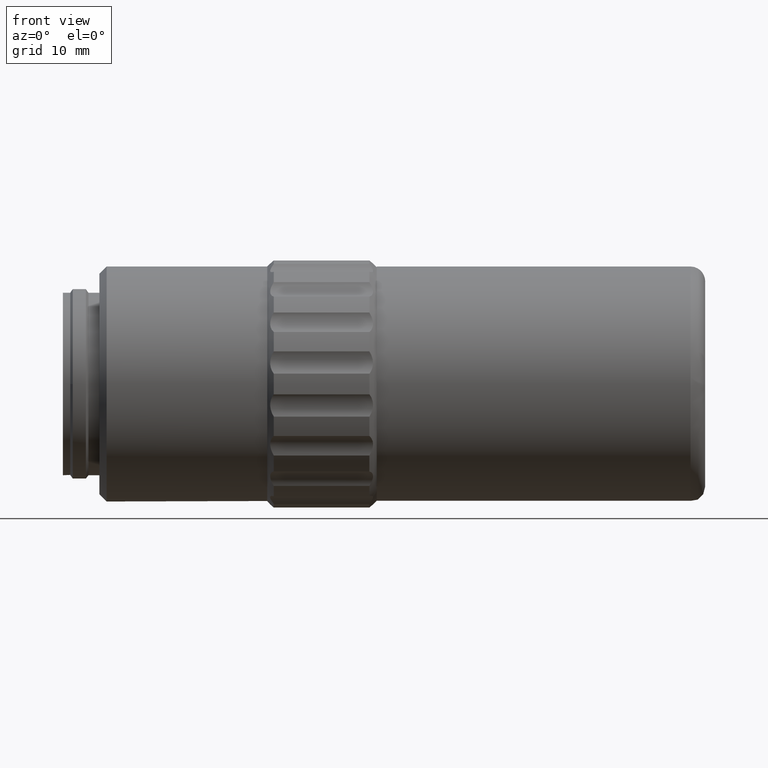
[diagram: clean part render]
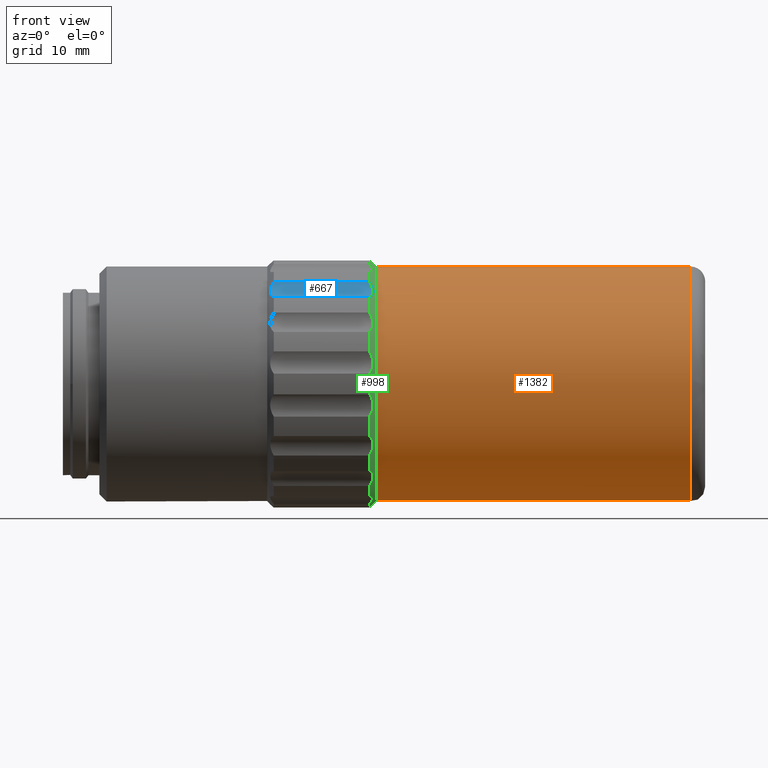
[diagram: same view with three faces highlighted in distinct colors, each labeled with its STEP entity id]
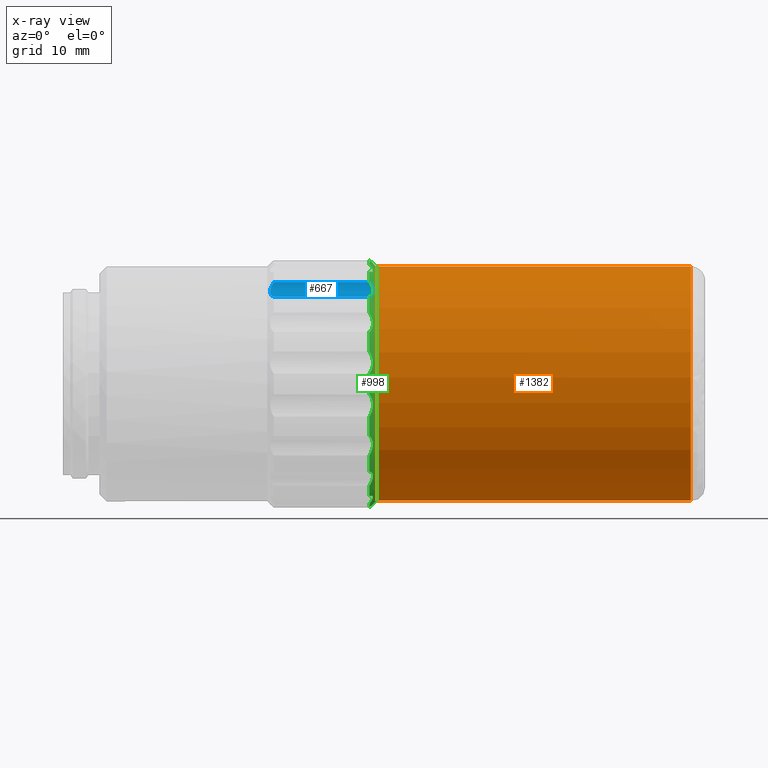
[diagram: x-ray of the same camera — body ghosted, the three highlighted faces saturated]
A machine part, front view with three faces highlighted in distinct colors.
The next image is the same camera in x-ray (body ghosted, the three faces saturated) — at least one of them is partly hidden behind the body in this view.
Their STEP definitions:

[orange] entity #1382 — the highlighted cylindrical surface (bore or boss wall) has radius 16.1 mm, axis along (-1, 0, 0).
#197 = EDGE_LOOP ( 'NONE', ( #1366 ) ) ;
#219 = CYLINDRICAL_SURFACE ( 'NONE', #1283, 16.10000000000000142 ) ;
#323 = EDGE_LOOP ( 'NONE', ( #825 ) ) ;
#419 = CARTESIAN_POINT ( 'NONE',  ( 61.03703999999999752, 46.02096199999999726, 0.000000000000000000 ) ) ;
#567 = CARTESIAN_POINT ( 'NONE',  ( 50.33704000000000178, 46.02096199999999726, 16.10000000000000142 ) ) ;
#581 = CARTESIAN_POINT ( 'NONE',  ( 50.33704000000000178, 46.02096199999999726, 0.000000000000000000 ) ) ;
#673 = FACE_OUTER_BOUND ( 'NONE', #197, .T. ) ;
#746 = DIRECTION ( 'NONE',  ( 1.000000000000000000, -0.000000000000000000, -0.000000000000000000 ) ) ;
#825 = ORIENTED_EDGE ( 'NONE', *, *, #1693, .T. ) ;
#857 = DIRECTION ( 'NONE',  ( -1.000000000000000000, 0.000000000000000000, 0.000000000000000000 ) ) ;
#994 = AXIS2_PLACEMENT_3D ( 'NONE', #581, #746, #1415 ) ;
#1018 = CARTESIAN_POINT ( 'NONE',  ( 93.33704000000001599, 46.02096199999999726, 0.000000000000000000 ) ) ;
#1052 = VERTEX_POINT ( 'NONE', #567 ) ;
#1209 = CIRCLE ( 'NONE', #1423, 16.10000000000000142 ) ;
#1283 = AXIS2_PLACEMENT_3D ( 'NONE', #419, #2117, #1583 ) ;
#1366 = ORIENTED_EDGE ( 'NONE', *, *, #1455, .T. ) ;
#1382 = ADVANCED_FACE ( 'NONE', ( #673, #1801 ), #219, .T. ) ;
#1415 = DIRECTION ( 'NONE',  ( 0.000000000000000000, 0.000000000000000000, 1.000000000000000000 ) ) ;
#1423 = AXIS2_PLACEMENT_3D ( 'NONE', #1018, #857, #1541 ) ;
#1455 = EDGE_CURVE ( 'NONE', #1052, #1052, #1537, .T. ) ;
#1537 = CIRCLE ( 'NONE', #994, 16.10000000000000142 ) ;
#1541 = DIRECTION ( 'NONE',  ( 0.000000000000000000, 0.000000000000000000, 1.000000000000000000 ) ) ;
#1582 = VERTEX_POINT ( 'NONE', #1724 ) ;
#1583 = DIRECTION ( 'NONE',  ( 0.000000000000000000, 0.000000000000000000, 1.000000000000000000 ) ) ;
#1693 = EDGE_CURVE ( 'NONE', #1582, #1582, #1209, .T. ) ;
#1724 = CARTESIAN_POINT ( 'NONE',  ( 93.33704000000001599, 46.02096199999999726, 16.10000000000000142 ) ) ;
#1801 = FACE_OUTER_BOUND ( 'NONE', #323, .T. ) ;
#2117 = DIRECTION ( 'NONE',  ( -1.000000000000000000, 0.000000000000000000, 0.000000000000000000 ) ) ;

[blue] entity #667 — the highlighted cylindrical surface (edge-blend (fillet) strip) has radius 3 mm, axis along (-1, 0, 0).
#53 = CYLINDRICAL_SURFACE ( 'NONE', #397, 3.000000000000000888 ) ;
#83 = CARTESIAN_POINT ( 'NONE',  ( 35.79583389907071478, 35.81385022434189835, 13.03947610223928244 ) ) ;
#124 = LINE ( 'NONE', #944, #1648 ) ;
#143 = CARTESIAN_POINT ( 'NONE',  ( 49.74229137359055386, 35.90193111884156707, 13.15323611948972271 ) ) ;
#162 = CARTESIAN_POINT ( 'NONE',  ( 36.23703999999999326, 36.32378364731472686, 13.96297718956139455 ) ) ;
#177 = CARTESIAN_POINT ( 'NONE',  ( 49.48389740914201695, 36.24308934852177089, 13.72813594343331545 ) ) ;
#187 = EDGE_CURVE ( 'NONE', #2011, #2041, #124, .T. ) ;
#205 = CARTESIAN_POINT ( 'NONE',  ( 36.08992233123988314, 36.24294634268020587, 13.72771975950780998 ) ) ;
#233 = EDGE_CURVE ( 'NONE', #2041, #2056, #1794, .T. ) ;
#385 = CARTESIAN_POINT ( 'NONE',  ( 35.73718579602896028, 35.30292207748090760, 12.54587797077276079 ) ) ;
#390 = ORIENTED_EDGE ( 'NONE', *, *, #514, .F. ) ;
#394 = CARTESIAN_POINT ( 'NONE',  ( 35.96557154307952686, 34.44935860872440259, 12.08340433005123060 ) ) ;
#397 = AXIS2_PLACEMENT_3D ( 'NONE', #1565, #1420, #1577 ) ;
#405 = CARTESIAN_POINT ( 'NONE',  ( 35.96396204701623134, 36.12848957674106742, 13.49056406336132596 ) ) ;
#514 = EDGE_CURVE ( 'NONE', #2154, #2011, #1898, .T. ) ;
#544 = FACE_OUTER_BOUND ( 'NONE', #1511, .T. ) ;
#667 = ADVANCED_FACE ( 'NONE', ( #544 ), #53, .F. ) ;
#669 = CARTESIAN_POINT ( 'NONE',  ( 49.82422713112011081, 35.63071352123775881, 12.83490613950239556 ) ) ;
#755 = CARTESIAN_POINT ( 'NONE',  ( 35.74985286887989844, 35.18529463847769989, 12.46115531925904918 ) ) ;
#763 = CARTESIAN_POINT ( 'NONE',  ( 36.09018259085798519, 34.19929705588980795, 12.01319058448290278 ) ) ;
#843 = CARTESIAN_POINT ( 'NONE',  ( 49.77690021752864880, 35.81747045796283402, 13.04400552683793890 ) ) ;
#869 = CARTESIAN_POINT ( 'NONE',  ( 49.60850845692045397, 36.13051957456375618, 13.49406587643664146 ) ) ;
#906 = CARTESIAN_POINT ( 'NONE',  ( 35.83178862640945539, 34.82470436459485086, 12.24933554730702312 ) ) ;
#922 = CARTESIAN_POINT ( 'NONE',  ( 35.79717978247136045, 34.94694193895058731, 12.31354536760547447 ) ) ;
#944 = CARTESIAN_POINT ( 'NONE',  ( 42.83704000000000178, 33.95401115804232006, 11.97450196783886867 ) ) ;
#968 = ORIENTED_EDGE ( 'NONE', *, *, #233, .F. ) ;
#993 = CARTESIAN_POINT ( 'NONE',  ( 36.23704000000000747, 33.95401115804232006, 11.97450196783887932 ) ) ;
#1017 = CARTESIAN_POINT ( 'NONE',  ( 49.83718322546596369, 35.30699293778217651, 12.54897458209229022 ) ) ;
#1034 = EDGE_CURVE ( 'NONE', #2056, #2154, #1772, .T. ) ;
#1040 = CARTESIAN_POINT ( 'NONE',  ( 49.77824610092929447, 34.95203119838304673, 12.31632407541566465 ) ) ;
#1164 = CARTESIAN_POINT ( 'NONE',  ( 49.83689420397103476, 35.52685220674475630, 12.73377765964754893 ) ) ;
#1230 = ORIENTED_EDGE ( 'NONE', *, *, #1034, .F. ) ;
#1260 = CARTESIAN_POINT ( 'NONE',  ( 36.23704000000000747, 33.95401115804232006, 11.97450196783887932 ) ) ;
#1334 = CARTESIAN_POINT ( 'NONE',  ( 49.33703999999998757, 33.95401115804232006, 11.97450196783887932 ) ) ;
#1420 = DIRECTION ( 'NONE',  ( -1.000000000000000000, 0.000000000000000000, 0.000000000000000000 ) ) ;
#1441 = DIRECTION ( 'NONE',  ( 1.000000000000000000, -0.000000000000000000, -0.000000000000000000 ) ) ;
#1509 = VECTOR ( 'NONE', #1441, 1000.000000000000000 ) ;
#1511 = EDGE_LOOP ( 'NONE', ( #968, #1915, #390, #1230 ) ) ;
#1553 = CARTESIAN_POINT ( 'NONE',  ( 49.61011795298376370, 34.45315972681317618, 12.08479540418657017 ) ) ;
#1565 = CARTESIAN_POINT ( 'NONE',  ( 70.47704240000000198, 33.48660361111249983, 14.93786664082010063 ) ) ;
#1577 = DIRECTION ( 'NONE',  ( 0.000000000000000000, 0.000000000000000000, 1.000000000000000000 ) ) ;
#1592 = CARTESIAN_POINT ( 'NONE',  ( 35.73689677453402425, 35.52309574243636803, 12.73030636577399832 ) ) ;
#1648 = VECTOR ( 'NONE', #1836, 1000.000000000000000 ) ;
#1709 = CARTESIAN_POINT ( 'NONE',  ( 49.74291650738140902, 34.82682132065500724, 12.25041840084325528 ) ) ;
#1751 = CARTESIAN_POINT ( 'NONE',  ( 35.83116349261858602, 35.90049711072168037, 13.15133936029216777 ) ) ;
#1772 = LINE ( 'NONE', #1943, #1509 ) ;
#1794 = B_SPLINE_CURVE_WITH_KNOTS ( 'NONE', 3,
 ( #1260, #763, #394, #906, #922, #755, #385, #1592, #1920, #83, #1751, #405, #205, #2091 ),
 .UNSPECIFIED., .F., .F.,
 ( 4, 2, 2, 2, 2, 2, 4 ),
 ( 0.000000000000000000, 0.0008570537395405546446, 0.001285580609310831967, 0.001714107479081109289, 0.002142634348851386612, 0.002571161218621663934, 0.003428214958162211640 ),
 .UNSPECIFIED. ) ;
#1836 = DIRECTION ( 'NONE',  ( -1.000000000000000000, 0.000000000000000000, 0.000000000000000000 ) ) ;
#1893 = CARTESIAN_POINT ( 'NONE',  ( 49.33704000000000178, 36.32378364731472686, 13.96297718956139100 ) ) ;
#1898 = B_SPLINE_CURVE_WITH_KNOTS ( 'NONE', 3,
 ( #1893, #177, #869, #143, #843, #669, #1164, #1017, #2223, #1040, #1709, #1553, #2064, #1334 ),
 .UNSPECIFIED., .F., .F.,
 ( 4, 2, 2, 2, 2, 2, 4 ),
 ( 1.734723475976807094E-18, 0.0008570537395405512836, 0.001285580609310826112, 0.001714107479081100832, 0.002142634348851375336, 0.002571161218621650490, 0.003428214958162204701 ),
 .UNSPECIFIED. ) ;
#1915 = ORIENTED_EDGE ( 'NONE', *, *, #187, .F. ) ;
#1920 = CARTESIAN_POINT ( 'NONE',  ( 35.74888686446901431, 35.62512614287680179, 12.82915025000380105 ) ) ;
#1943 = CARTESIAN_POINT ( 'NONE',  ( 70.47704240000000198, 36.32378364731472686, 13.96297718956139100 ) ) ;
#2011 = VERTEX_POINT ( 'NONE', #2201 ) ;
#2041 = VERTEX_POINT ( 'NONE', #993 ) ;
#2056 = VERTEX_POINT ( 'NONE', #162 ) ;
#2064 = CARTESIAN_POINT ( 'NONE',  ( 49.48415766876007638, 34.19973174975011432, 12.01325914816416329 ) ) ;
#2091 = CARTESIAN_POINT ( 'NONE',  ( 36.23703999999999326, 36.32378364731472686, 13.96297718956139455 ) ) ;
#2154 = VERTEX_POINT ( 'NONE', #2210 ) ;
#2201 = CARTESIAN_POINT ( 'NONE',  ( 49.33703999999998757, 33.95401115804232006, 11.97450196783887932 ) ) ;
#2210 = CARTESIAN_POINT ( 'NONE',  ( 49.33704000000000178, 36.32378364731472686, 13.96297718956139100 ) ) ;
#2223 = CARTESIAN_POINT ( 'NONE',  ( 49.82519313553098073, 35.19193332115171557, 12.46565831306566352 ) ) ;

[green] entity #998 — the highlighted conical surface has half-angle 45 deg.
#2 = CARTESIAN_POINT ( 'NONE',  ( 49.83718322546595658, 56.73493106221783222, -12.54897458209228844 ) ) ;
#11 = CARTESIAN_POINT ( 'NONE',  ( 49.33703999999998047, 46.02096199999999726, 0.000000000000000000 ) ) ;
#12 = CARTESIAN_POINT ( 'NONE',  ( 49.33703999999998757, 47.56772114077767810, -16.92948717948717885 ) ) ;
#17 = CARTESIAN_POINT ( 'NONE',  ( 49.33703999999998757, 29.61726367720591568, 4.463034991433923793 ) ) ;
#19 = EDGE_CURVE ( 'NONE', #1489, #1706, #1135, .T. ) ;
#24 = CARTESIAN_POINT ( 'NONE',  ( 49.33704000000001599, 50.35770948083634835, -16.43753695927276226 ) ) ;
#26 = CARTESIAN_POINT ( 'NONE',  ( 49.33703999999998757, 29.61726367720591568, 4.463034991433923793 ) ) ;
#27 = ORIENTED_EDGE ( 'NONE', *, *, #1631, .T. ) ;
#30 = CARTESIAN_POINT ( 'NONE',  ( 49.48415766876011901, 39.02141578089250373, 15.33186983759482658 ) ) ;
#45 = CARTESIAN_POINT ( 'NONE',  ( 49.83689420397104897, 40.51493292579076666, 15.55503383706371423 ) ) ;
#47 = CARTESIAN_POINT ( 'NONE',  ( 49.77824610092931579, 52.20992366875027102, -15.35935614810682814 ) ) ;
#48 = CARTESIAN_POINT ( 'NONE',  ( 49.48415766876006927, 61.23806145043451465, -7.245672108642466469 ) ) ;
#49 = B_SPLINE_CURVE_WITH_KNOTS ( 'NONE', 3,
 ( #392, #1591, #1580, #1785, #1759, #64, #45, #588, #2102, #54, #1621, #1957, #30, #1404 ),
 .UNSPECIFIED., .F., .F.,
 ( 4, 2, 2, 2, 2, 2, 4 ),
 ( 1.430489624538199204E-17, 0.0008570537395405920496, 0.001285580609310877503, 0.001714107479081163283, 0.002142634348851449062, 0.002571161218621734624, 0.003428214958162300111 ),
 .UNSPECIFIED. ) ;
#50 = CARTESIAN_POINT ( 'NONE',  ( 49.82519313553096652, 29.71267404596758155, 2.588482820839964837 ) ) ;
#54 = CARTESIAN_POINT ( 'NONE',  ( 49.77824610092929447, 39.83200033124972350, 15.35935614810683880 ) ) ;
#56 = CARTESIAN_POINT ( 'NONE',  ( 49.60850845692051792, 50.69969541838543137, -16.06300466438838725 ) ) ;
#57 = CARTESIAN_POINT ( 'NONE',  ( 49.33703999999995915, 59.90894840009008959, -9.804276299192858701 ) ) ;
#61 = CARTESIAN_POINT ( 'NONE',  ( 49.74291650738140902, 46.72175410136632934, -16.57981987161946691 ) ) ;
#64 = CARTESIAN_POINT ( 'NONE',  ( 49.82422713112011081, 40.64711861377921309, 15.61454086166572708 ) ) ;
#67 = CARTESIAN_POINT ( 'NONE',  ( 49.82519313553097362, 62.23105311343569923, 3.145384777659983033 ) ) ;
#75 = CIRCLE ( 'NONE', #2130, 17.00000000000000000 ) ;
#78 = ORIENTED_EDGE ( 'NONE', *, *, #1598, .T. ) ;
#80 = CARTESIAN_POINT ( 'NONE',  ( 49.74229137359052544, 34.82470436459487928, -12.24933554730703378 ) ) ;
#82 = EDGE_CURVE ( 'NONE', #1774, #2154, #2010, .T. ) ;
#85 = CARTESIAN_POINT ( 'NONE',  ( 49.77690021752869143, 51.14779506847382606, -15.74715537868998183 ) ) ;
#87 = CARTESIAN_POINT ( 'NONE',  ( 49.83689420397100633, 60.23740799466897045, -8.376639965934810306 ) ) ;
#88 = ORIENTED_EDGE ( 'NONE', *, *, #674, .T. ) ;
#94 = CARTESIAN_POINT ( 'NONE',  ( 49.77690021752860616, 31.97150365186628918, 8.767556099430427352 ) ) ;
#96 = ORIENTED_EDGE ( 'NONE', *, *, #1787, .T. ) ;
#97 = CARTESIAN_POINT ( 'NONE',  ( 49.33703999999999468, 55.71814035268528187, 13.96297718956140166 ) ) ;
#99 = CARTESIAN_POINT ( 'NONE',  ( 49.77824610092933000, 31.96965089949767247, -8.762061639736755225 ) ) ;
#102 = EDGE_CURVE ( 'NONE', #234, #334, #645, .T. ) ;
#103 = CARTESIAN_POINT ( 'NONE',  ( 49.60850845692047528, 39.27997936338326213, -15.31240733331347315 ) ) ;
#104 = VERTEX_POINT ( 'NONE', #24 ) ;
#111 = CARTESIAN_POINT ( 'NONE',  ( 49.83718322546591395, 60.23975066403165357, 8.372093230236091088 ) ) ;
#120 = CARTESIAN_POINT ( 'NONE',  ( 49.33703999999999468, 61.45570754086772070, 7.125210880294360116 ) ) ;
#127 = CARTESIAN_POINT ( 'NONE',  ( 49.83689420397104186, 56.73900192251907981, 12.54587797077277322 ) ) ;
#131 = CARTESIAN_POINT ( 'NONE',  ( 49.60850845692043976, 61.02747999826900838, 7.396964432529773426 ) ) ;
#134 = CARTESIAN_POINT ( 'NONE',  ( 49.83718322546601343, 51.53170824842818831, 15.55305667428729066 ) ) ;
#135 = AXIS2_PLACEMENT_3D ( 'NONE', #1088, #1962, #1625 ) ;
#136 = CARTESIAN_POINT ( 'NONE',  ( 49.33703999999998757, 47.56772114077767810, -16.92948717948717885 ) ) ;
#139 = VERTEX_POINT ( 'NONE', #776 ) ;
#142 = AXIS2_PLACEMENT_3D ( 'NONE', #804, #2032, #1337 ) ;
#143 = CARTESIAN_POINT ( 'NONE',  ( 49.74229137359055386, 35.90193111884156707, 13.15323611948972271 ) ) ;
#145 = CARTESIAN_POINT ( 'NONE',  ( 49.77824610092925894, 62.41703544440839835, -2.319880045867577234 ) ) ;
#155 = CARTESIAN_POINT ( 'NONE',  ( 49.60850845692041844, 29.38953693794697131, -1.818341456876848783 ) ) ;
#164 = CARTESIAN_POINT ( 'NONE',  ( 49.33703999999998757, 58.08791284195767446, -11.97450196783888110 ) ) ;
#167 = CARTESIAN_POINT ( 'NONE',  ( 49.83689420397101344, 29.74613216397480997, -2.721276841238304378 ) ) ;
#174 = B_SPLINE_CURVE_WITH_KNOTS ( 'NONE', 3,
 ( #1424, #2125, #578, #1311, #2002, #2156, #1136, #291, #1445, #99, #1323, #642, #1832, #973 ),
 .UNSPECIFIED., .F., .F.,
 ( 4, 2, 2, 2, 2, 2, 4 ),
 ( 8.673617379884035472E-19, 0.0008570537395405856528, 0.001285580609310878588, 0.001714107479081169571, 0.002142634348851460337, 0.002571161218621751537, 0.003428214958162343045 ),
 .UNSPECIFIED. ) ;
#175 = ORIENTED_EDGE ( 'NONE', *, *, #1387, .T. ) ;
#177 = CARTESIAN_POINT ( 'NONE',  ( 49.48389740914201695, 36.24308934852177089, 13.72813594343331545 ) ) ;
#178 = DIRECTION ( 'NONE',  ( 0.000000000000000000, 1.000000000000000000, 6.217248937900876626E-15 ) ) ;
#180 = CARTESIAN_POINT ( 'NONE',  ( 49.74291650738139481, 29.81471811820888362, -3.569201001427910303 ) ) ;
#186 = ORIENTED_EDGE ( 'NONE', *, *, #2107, .T. ) ;
#188 = CARTESIAN_POINT ( 'NONE',  ( 49.83718322546592816, 31.66112224774798278, 8.127785578975540659 ) ) ;
#192 = CARTESIAN_POINT ( 'NONE',  ( 49.77690021752860616, 29.62277607563510173, -2.314480119284870518 ) ) ;
#199 = CARTESIAN_POINT ( 'NONE',  ( 49.33703999999997336, 32.13297559990991914, 9.804276299192837385 ) ) ;
#204 = CARTESIAN_POINT ( 'NONE',  ( 49.33703999999997336, 41.68421451916363196, 16.43753695927285818 ) ) ;
#210 = VERTEX_POINT ( 'NONE', #17 ) ;
#213 = DIRECTION ( 'NONE',  ( 1.000000000000000000, -0.000000000000000000, -0.000000000000000000 ) ) ;
#215 = CARTESIAN_POINT ( 'NONE',  ( 49.48415766876009059, 36.24294634268018456, -13.72771975950780288 ) ) ;
#221 = CARTESIAN_POINT ( 'NONE',  ( 49.33704000000000178, 61.45570754086768517, -7.125210880294358340 ) ) ;
#228 = CARTESIAN_POINT ( 'NONE',  ( 49.77824610092929447, 35.81385022434190546, -13.03947610223929310 ) ) ;
#231 = CARTESIAN_POINT ( 'NONE',  ( 49.33703999999999468, 46.02096199999999726, 0.000000000000000000 ) ) ;
#232 = CARTESIAN_POINT ( 'NONE',  ( 49.74229137359052544, 46.72407182862873043, 16.58035111081103352 ) ) ;
#234 = VERTEX_POINT ( 'NONE', #772 ) ;
#251 = VERTEX_POINT ( 'NONE', #1067 ) ;
#253 = B_SPLINE_CURVE_WITH_KNOTS ( 'NONE', 3,
 ( #26, #728, #1401, #2099, #1588, #1933, #389, #1072, #50, #571, #1775, #1979, #1987, #2136 ),
 .UNSPECIFIED., .F., .F.,
 ( 4, 2, 2, 2, 2, 2, 4 ),
 ( 2.301370753934467615E-17, 0.0008570537395405619088, 0.001285580609310828064, 0.001714107479081094327, 0.002142634348851360591, 0.002571161218621627071, 0.003428214958162163501 ),
 .UNSPECIFIED. ) ;
#258 = CARTESIAN_POINT ( 'NONE',  ( 49.74291650738143034, 51.03306520244601074, 15.81961940227117758 ) ) ;
#259 = CARTESIAN_POINT ( 'NONE',  ( 49.74291650738138770, 60.72990324967569364, -7.683006173255046534 ) ) ;
#262 = VERTEX_POINT ( 'NONE', #1939 ) ;
#263 = CARTESIAN_POINT ( 'NONE',  ( 49.48389740914198853, 32.13746819945419020, 9.555998637511374127 ) ) ;
#265 = CARTESIAN_POINT ( 'NONE',  ( 49.61011795298376370, 59.93088999195955324, 9.293558664531927249 ) ) ;
#266 = EDGE_CURVE ( 'NONE', #2034, #1630, #174, .T. ) ;
#273 = DIRECTION ( 'NONE',  ( 0.000000000000000000, 0.000000000000000000, 1.000000000000000000 ) ) ;
#283 = CARTESIAN_POINT ( 'NONE',  ( 49.83689420397107028, 40.24024195723010422, -15.45505450088583821 ) ) ;
#286 = CONICAL_SURFACE ( 'NONE', #1873, 17.00000000000001421, 0.7853981633974447263 ) ;
#288 = DIRECTION ( 'NONE',  ( 0.000000000000000000, 1.000000000000000000, 0.000000000000000000 ) ) ;
#290 = ORIENTED_EDGE ( 'NONE', *, *, #1321, .T. ) ;
#291 = CARTESIAN_POINT ( 'NONE',  ( 49.83718322546600632, 31.80217333596844398, -8.372093230236091088 ) ) ;
#293 = CARTESIAN_POINT ( 'NONE',  ( 49.82422713112015344, 51.94119253261678182, 15.41567220399189075 ) ) ;
#300 = ORIENTED_EDGE ( 'NONE', *, *, #1895, .T. ) ;
#311 = DIRECTION ( 'NONE',  ( 1.000000000000000000, -0.000000000000000000, -0.000000000000000000 ) ) ;
#322 = CARTESIAN_POINT ( 'NONE',  ( 49.77824610092928026, 56.22807377565807485, 13.03947610223928599 ) ) ;
#334 = VERTEX_POINT ( 'NONE', #1640 ) ;
#342 = CARTESIAN_POINT ( 'NONE',  ( 49.33704000000000178, 55.71814035268526766, -13.96297718956138922 ) ) ;
#344 = DIRECTION ( 'NONE',  ( 0.000000000000000000, 1.000000000000000000, -3.552713678800500929E-15 ) ) ;
#356 = AXIS2_PLACEMENT_3D ( 'NONE', #1231, #1367, #1732 ) ;
#358 = VERTEX_POINT ( 'NONE', #1845 ) ;
#360 = CARTESIAN_POINT ( 'NONE',  ( 49.82422713112009660, 56.41121047876222860, -12.83490613950239023 ) ) ;
#373 = CARTESIAN_POINT ( 'NONE',  ( 49.33703999999998757, 62.42466032279407528, -4.463034991433911358 ) ) ;
#375 = CARTESIAN_POINT ( 'NONE',  ( 49.77824610092927315, 29.82024706863964880, -3.427813229224472291 ) ) ;
#378 = AXIS2_PLACEMENT_3D ( 'NONE', #561, #213, #1946 ) ;
#383 = DIRECTION ( 'NONE',  ( 1.000000000000000000, -0.000000000000000000, -0.000000000000000000 ) ) ;
#387 = CARTESIAN_POINT ( 'NONE',  ( 49.60850845692041844, 62.65238706205303032, 1.818341456876850781 ) ) ;
#389 = CARTESIAN_POINT ( 'NONE',  ( 49.83689420397100633, 29.79689300327163792, 3.009155866290929904 ) ) ;
#392 = CARTESIAN_POINT ( 'NONE',  ( 49.33703999999997336, 41.68421451916363196, 16.43753695927285818 ) ) ;
#396 = CARTESIAN_POINT ( 'NONE',  ( 49.77690021752860616, 62.41914792436489989, 2.314480119284867854 ) ) ;
#399 = CARTESIAN_POINT ( 'NONE',  ( 49.61011795298374238, 61.02438389102538707, -7.399571673583226428 ) ) ;
#403 = CARTESIAN_POINT ( 'NONE',  ( 49.33703999999999468, 46.02096199999999726, 0.000000000000000000 ) ) ;
#407 = DIRECTION ( 'NONE',  ( 0.000000000000000000, 1.000000000000000000, 1.065814103640150437E-14 ) ) ;
#408 = CARTESIAN_POINT ( 'NONE',  ( 49.83718322546597079, 45.87991091177963909, 16.49987880921161576 ) ) ;
#422 = AXIS2_PLACEMENT_3D ( 'NONE', #231, #1447, #407 ) ;
#436 = VERTEX_POINT ( 'NONE', #1697 ) ;
#445 = CARTESIAN_POINT ( 'NONE',  ( 49.33703999999998757, 58.08791284195770288, 11.97450196783888643 ) ) ;
#447 = B_SPLINE_CURVE_WITH_KNOTS ( 'NONE', 3,
 ( #1530, #832, #2203, #1007, #1185, #360, #1346, #2, #2042, #1856, #1197, #498, #2212, #164 ),
 .UNSPECIFIED., .F., .F.,
 ( 4, 2, 2, 2, 2, 2, 4 ),
 ( 3.469446951953614189E-18, 0.0008570537395405521510, 0.001285580609310828498, 0.001714107479081104736, 0.002142634348851380974, 0.002571161218621656995, 0.003428214958162201231 ),
 .UNSPECIFIED. ) ;
#452 = CARTESIAN_POINT ( 'NONE',  ( 49.82519313553095941, 60.17768004909311230, 8.499872551038851753 ) ) ;
#456 = B_SPLINE_CURVE_WITH_KNOTS ( 'NONE', 3,
 ( #952, #1676, #467, #1138, #1835, #293, #1459, #134, #658, #1165, #258, #943, #1641, #1392 ),
 .UNSPECIFIED., .F., .F.,
 ( 4, 2, 2, 2, 2, 2, 4 ),
 ( 6.938893903907227607E-18, 0.0008570537395405876044, 0.001285580609310874685, 0.001714107479081162198, 0.002142634348851447761, 0.002571161218621735925, 0.003428214958162328733 ),
 .UNSPECIFIED. ) ;
#457 = CARTESIAN_POINT ( 'NONE',  ( 49.82519313553103046, 40.63989956541264092, -15.61104309072564078 ) ) ;
#459 = CARTESIAN_POINT ( 'NONE',  ( 49.33703999999999468, 55.71814035268528187, 13.96297718956140166 ) ) ;
#460 = VERTEX_POINT ( 'NONE', #1686 ) ;
#467 = CARTESIAN_POINT ( 'NONE',  ( 49.60850845692048949, 52.76194463661673950, 15.31240733331347492 ) ) ;
#469 = CARTESIAN_POINT ( 'NONE',  ( 49.74291650738144455, 41.00885879755396246, -15.81961940227116870 ) ) ;
#480 = CARTESIAN_POINT ( 'NONE',  ( 49.33703999999998757, 62.42466032279407528, -4.463034991433911358 ) ) ;
#488 = ORIENTED_EDGE ( 'NONE', *, *, #2162, .T. ) ;
#493 = CARTESIAN_POINT ( 'NONE',  ( 49.83718322546602053, 40.51021575157182042, -15.55305667428728533 ) ) ;
#498 = CARTESIAN_POINT ( 'NONE',  ( 49.61011795298374949, 57.58876427318683255, -12.08479540418656661 ) ) ;
#502 = AXIS2_PLACEMENT_3D ( 'NONE', #682, #1687, #178 ) ;
#504 = CARTESIAN_POINT ( 'NONE',  ( 49.33704000000000889, 46.02096199999999726, 0.000000000000000000 ) ) ;
#511 = B_SPLINE_CURVE_WITH_KNOTS ( 'NONE', 3,
 ( #2020, #824, #103, #622, #659, #836, #283, #493, #457, #966, #469, #2175, #1983, #1860 ),
 .UNSPECIFIED., .F., .F.,
 ( 4, 2, 2, 2, 2, 2, 4 ),
 ( 1.561251128379126385E-17, 0.0008570537395405857612, 0.001285580609310873817, 0.001714107479081161982, 0.002142634348851452097, 0.002571161218621741996, 0.003428214958162318325 ),
 .UNSPECIFIED. ) ;
#514 = EDGE_CURVE ( 'NONE', #2154, #2011, #1898, .T. ) ;
#524 = CARTESIAN_POINT ( 'NONE',  ( 49.33703999999998047, 29.08007986503451647, -1.416514203673299832 ) ) ;
#530 = CARTESIAN_POINT ( 'NONE',  ( 49.33704000000001599, 29.61726367720594766, -4.463034991433898035 ) ) ;
#534 = EDGE_CURVE ( 'NONE', #960, #234, #447, .T. ) ;
#538 = DIRECTION ( 'NONE',  ( 1.000000000000000000, -0.000000000000000000, -0.000000000000000000 ) ) ;
#549 = DIRECTION ( 'NONE',  ( 0.000000000000000000, 1.000000000000000000, -1.953992523340275511E-14 ) ) ;
#552 = CARTESIAN_POINT ( 'NONE',  ( 49.77824610092928737, 46.58347441928597021, -16.54982318938170494 ) ) ;
#553 = ORIENTED_EDGE ( 'NONE', *, *, #724, .T. ) ;
#557 = CARTESIAN_POINT ( 'NONE',  ( 49.33703999999999468, 53.26466578228019699, -15.37949139323468017 ) ) ;
#558 = CARTESIAN_POINT ( 'NONE',  ( 49.33703999999998047, 46.02096199999999726, 0.000000000000000000 ) ) ;
#559 = ORIENTED_EDGE ( 'NONE', *, *, #1440, .T. ) ;
#561 = CARTESIAN_POINT ( 'NONE',  ( 49.33704000000001599, 46.02096199999999726, 0.000000000000000000 ) ) ;
#568 = CARTESIAN_POINT ( 'NONE',  ( 49.83718322546597790, 51.79679758193721995, -15.45657204746853175 ) ) ;
#571 = CARTESIAN_POINT ( 'NONE',  ( 49.77824610092926605, 29.62488855559160683, 2.319880045867564355 ) ) ;
#578 = CARTESIAN_POINT ( 'NONE',  ( 49.60850845692048949, 31.01444400173102878, -7.396964432529725464 ) ) ;
#584 = CARTESIAN_POINT ( 'NONE',  ( 49.60850845692040423, 59.93018010859523770, -9.297543592584473160 ) ) ;
#588 = CARTESIAN_POINT ( 'NONE',  ( 49.83718322546596369, 40.24512641806275326, 15.45657204746855840 ) ) ;
#592 = DIRECTION ( 'NONE',  ( -1.000000000000000000, 0.000000000000000000, 2.040851148208006519E-16 ) ) ;
#605 = CIRCLE ( 'NONE', #1901, 16.99999999999997513 ) ;
#610 = CARTESIAN_POINT ( 'NONE',  ( 49.33704000000000178, 61.45570754086768517, -7.125210880294358340 ) ) ;
#612 = CARTESIAN_POINT ( 'NONE',  ( 49.83718322546592816, 62.29466383950087760, -2.726265681694565846 ) ) ;
#614 = ORIENTED_EDGE ( 'NONE', *, *, #514, .T. ) ;
#615 = DIRECTION ( 'NONE',  ( 0.000000000000000000, 1.000000000000000000, 8.881784197001252323E-16 ) ) ;
#616 = ORIENTED_EDGE ( 'NONE', *, *, #1782, .T. ) ;
#622 = CARTESIAN_POINT ( 'NONE',  ( 49.74229137359056807, 39.68944081912606947, -15.33995586450727089 ) ) ;
#628 = CARTESIAN_POINT ( 'NONE',  ( 49.48389740914198853, 61.23844647888725490, 7.245459005800728214 ) ) ;
#639 = DIRECTION ( 'NONE',  ( 0.000000000000000000, 1.000000000000000000, -1.154631945610162960E-14 ) ) ;
#642 = CARTESIAN_POINT ( 'NONE',  ( 49.61011795298379212, 32.11103400804058339, -9.293558664531982316 ) ) ;
#645 = CIRCLE ( 'NONE', #1102, 17.00000000000001421 ) ;
#646 = DIRECTION ( 'NONE',  ( -1.000000000000000000, 0.000000000000000000, 0.000000000000000000 ) ) ;
#658 = CARTESIAN_POINT ( 'NONE',  ( 49.82519313553102336, 51.40202443458733939, 15.61104309072564966 ) ) ;
#659 = CARTESIAN_POINT ( 'NONE',  ( 49.77690021752867011, 39.82626761767232182, -15.35848564612279077 ) ) ;
#668 = EDGE_LOOP ( 'NONE', ( #717, #290, #300, #1831, #186, #616, #1442, #701, #488, #1524, #1189, #559, #175, #2069, #862, #1852, #1731, #1003, #1586, #741, #27, #937, #1315, #553, #88, #78, #1973, #900, #1557, #96, #1712, #614, #1965, #955, #705, #1900 ) ) ;
#669 = CARTESIAN_POINT ( 'NONE',  ( 49.82422713112011081, 35.63071352123775881, 12.83490613950239556 ) ) ;
#674 = EDGE_CURVE ( 'NONE', #1897, #1063, #75, .T. ) ;
#678 = CARTESIAN_POINT ( 'NONE',  ( 49.33704000000000178, 46.02096199999999726, 0.000000000000000000 ) ) ;
#679 = EDGE_CURVE ( 'NONE', #2097, #1522, #1975, .T. ) ;
#682 = CARTESIAN_POINT ( 'NONE',  ( 49.33703999999998757, 46.02096199999999726, 0.000000000000000000 ) ) ;
#701 = ORIENTED_EDGE ( 'NONE', *, *, #1224, .T. ) ;
#705 = ORIENTED_EDGE ( 'NONE', *, *, #868, .T. ) ;
#717 = ORIENTED_EDGE ( 'NONE', *, *, #1104, .F. ) ;
#724 = EDGE_CURVE ( 'NONE', #1162, #1897, #1274, .T. ) ;
#728 = CARTESIAN_POINT ( 'NONE',  ( 49.48389740914200985, 29.70640130127867451, 4.231266864385899495 ) ) ;
#736 = CARTESIAN_POINT ( 'NONE',  ( 49.48389740914206669, 50.51385775461107386, -16.24445744886877918 ) ) ;
#740 = CARTESIAN_POINT ( 'NONE',  ( 49.33703999999998047, 44.47420285922230221, -16.92948717948720727 ) ) ;
#741 = ORIENTED_EDGE ( 'NONE', *, *, #1466, .T. ) ;
#757 = DIRECTION ( 'NONE',  ( 4.081702296416013038E-16, 0.000000000000000000, 1.000000000000000000 ) ) ;
#759 = CARTESIAN_POINT ( 'NONE',  ( 49.33704000000000889, 46.02096199999999726, 0.000000000000000000 ) ) ;
#761 = CARTESIAN_POINT ( 'NONE',  ( 49.82422713112008950, 35.18529463847772121, -12.46115531925905806 ) ) ;
#767 = CARTESIAN_POINT ( 'NONE',  ( 49.48389740914203117, 47.35495267834148336, 16.80145764331209435 ) ) ;
#772 = CARTESIAN_POINT ( 'NONE',  ( 49.33703999999998757, 58.08791284195767446, -11.97450196783888110 ) ) ;
#776 = CARTESIAN_POINT ( 'NONE',  ( 49.33704000000000178, 47.56772114077768521, 16.92948717948718240 ) ) ;
#778 = EDGE_LOOP ( 'NONE', ( #2169 ) ) ;
#779 = CARTESIAN_POINT ( 'NONE',  ( 49.82422713112009660, 60.46512478920966771, 8.003639195957678254 ) ) ;
#792 = CARTESIAN_POINT ( 'NONE',  ( 49.33704000000000178, 44.47420285922232353, 16.92948717948717530 ) ) ;
#799 = CARTESIAN_POINT ( 'NONE',  ( 49.48415766876006927, 59.90444783879402735, 9.555558641669254172 ) ) ;
#804 = CARTESIAN_POINT ( 'NONE',  ( 49.33704000000000889, 46.02096199999999726, 0.000000000000000000 ) ) ;
#807 = CARTESIAN_POINT ( 'NONE',  ( 49.33704000000000178, 46.02096199999999726, 0.000000000000000000 ) ) ;
#809 = CARTESIAN_POINT ( 'NONE',  ( 49.83689420397100633, 60.38356800619005327, 8.123483399945433447 ) ) ;
#813 = CARTESIAN_POINT ( 'NONE',  ( 49.60850845692043976, 62.27129880966106157, -3.979600334337187739 ) ) ;
#814 = VERTEX_POINT ( 'NONE', #1899 ) ;
#815 = CARTESIAN_POINT ( 'NONE',  ( 49.61011795298380633, 55.91343442325894841, 13.49056406336132952 ) ) ;
#824 = CARTESIAN_POINT ( 'NONE',  ( 49.48389740914201695, 39.02098385211959197, -15.33195408286589867 ) ) ;
#832 = CARTESIAN_POINT ( 'NONE',  ( 49.48389740914204538, 55.79883465147821653, -13.72813594343331189 ) ) ;
#836 = CARTESIAN_POINT ( 'NONE',  ( 49.82422713112013923, 40.10073146738320560, -15.41567220399188543 ) ) ;
#843 = CARTESIAN_POINT ( 'NONE',  ( 49.77690021752864880, 35.81747045796283402, 13.04400552683793890 ) ) ;
#846 = AXIS2_PLACEMENT_3D ( 'NONE', #678, #1170, #639 ) ;
#852 = DIRECTION ( 'NONE',  ( 1.000000000000000000, -0.000000000000000000, -0.000000000000000000 ) ) ;
#862 = ORIENTED_EDGE ( 'NONE', *, *, #102, .T. ) ;
#868 = EDGE_CURVE ( 'NONE', #1522, #210, #2192, .T. ) ;
#869 = CARTESIAN_POINT ( 'NONE',  ( 49.60850845692045397, 36.13051957456375618, 13.49406587643664146 ) ) ;
#877 = CARTESIAN_POINT ( 'NONE',  ( 49.33703999999999468, 33.95401115804229875, -11.97450196783888821 ) ) ;
#879 = CARTESIAN_POINT ( 'NONE',  ( 49.82519313553098783, 31.58149741732376725, 8.010141189208871637 ) ) ;
#880 = CARTESIAN_POINT ( 'NONE',  ( 49.33704000000000889, 32.13297559991000441, -9.804276299192871136 ) ) ;
#892 = CARTESIAN_POINT ( 'NONE',  ( 49.74291650738140191, 35.90049711072168748, -13.15133936029217665 ) ) ;
#893 = CARTESIAN_POINT ( 'NONE',  ( 49.33703999999999468, 53.26466578228019699, -15.37949139323468017 ) ) ;
#899 = CARTESIAN_POINT ( 'NONE',  ( 49.33704000000001599, 62.42466032279404686, 4.463034991433892706 ) ) ;
#900 = ORIENTED_EDGE ( 'NONE', *, *, #1094, .T. ) ;
#903 = CARTESIAN_POINT ( 'NONE',  ( 49.60850845692044686, 34.44935860872440969, -12.08340433005123593 ) ) ;
#909 = EDGE_CURVE ( 'NONE', #1694, #1718, #1830, .T. ) ;
#911 = CARTESIAN_POINT ( 'NONE',  ( 49.48389740914199564, 44.68697132165851826, -16.80145764331209080 ) ) ;
#912 = B_SPLINE_CURVE_WITH_KNOTS ( 'NONE', 3,
 ( #524, #1739, #155, #1226, #192, #1922, #167, #1372, #2066, #375, #180, #1200, #1896, #1030 ),
 .UNSPECIFIED., .F., .F.,
 ( 4, 2, 2, 2, 2, 2, 4 ),
 ( 9.986437839578378192E-18, 0.0008570537395405388153, 0.001285580609310806380, 0.001714107479081073727, 0.002142634348851341075, 0.002571161218621608856, 0.003428214958162145286 ),
 .UNSPECIFIED. ) ;
#918 = CARTESIAN_POINT ( 'NONE',  ( 49.74229137359048991, 60.02841235131358388, -8.899086528648503247 ) ) ;
#924 = CARTESIAN_POINT ( 'NONE',  ( 49.48415766876009059, 53.02050821910746947, -15.33186983759483013 ) ) ;
#937 = ORIENTED_EDGE ( 'NONE', *, *, #1872, .T. ) ;
#943 = CARTESIAN_POINT ( 'NONE',  ( 49.61011795298380633, 50.70280068296951015, 16.06040833662844491 ) ) ;
#945 = CARTESIAN_POINT ( 'NONE',  ( 49.33703999999998047, 62.96184413496547450, 1.416514203673303385 ) ) ;
#946 = CARTESIAN_POINT ( 'NONE',  ( 49.60850845692041844, 32.11174389140475682, 9.297543592584467831 ) ) ;
#949 = CARTESIAN_POINT ( 'NONE',  ( 49.33704000000002310, 46.02096199999999726, 0.000000000000000000 ) ) ;
#952 = CARTESIAN_POINT ( 'NONE',  ( 49.33704000000000178, 53.26466578228019699, 15.37949139323468017 ) ) ;
#955 = ORIENTED_EDGE ( 'NONE', *, *, #679, .T. ) ;
#957 = B_SPLINE_CURVE_WITH_KNOTS ( 'NONE', 3,
 ( #1412, #1602, #903, #80, #1777, #761, #1434, #1749, #2137, #228, #892, #1938, #215, #2115 ),
 .UNSPECIFIED., .F., .F.,
 ( 4, 2, 2, 2, 2, 2, 4 ),
 ( 1.636534854170084423E-17, 0.0008570537395405636435, 0.001285580609310837171, 0.001714107479081110807, 0.002142634348851384877, 0.002571161218621658296, 0.003428214958162212507 ),
 .UNSPECIFIED. ) ;
#960 = VERTEX_POINT ( 'NONE', #342 ) ;
#962 = CARTESIAN_POINT ( 'NONE',  ( 49.77690021752860616, 60.63861748527881446, 7.783409789179931870 ) ) ;
#966 = CARTESIAN_POINT ( 'NONE',  ( 49.77824610092933000, 40.88917787025668105, -15.74413730464013028 ) ) ;
#967 = AXIS2_PLACEMENT_3D ( 'NONE', #1381, #1532, #1544 ) ;
#973 = CARTESIAN_POINT ( 'NONE',  ( 49.33704000000000889, 32.13297559991000441, -9.804276299192871136 ) ) ;
#978 = CARTESIAN_POINT ( 'NONE',  ( 49.60850845692046107, 57.59256539127557062, 12.08340433005123948 ) ) ;
#985 = CARTESIAN_POINT ( 'NONE',  ( 49.33703999999999468, 46.02096199999999726, 0.000000000000000000 ) ) ;
#987 = CARTESIAN_POINT ( 'NONE',  ( 49.74291650738143034, 45.32016989863367940, 16.57981987161947046 ) ) ;
#998 = ADVANCED_FACE ( 'NONE', ( #1109, #1635 ), #286, .T. ) ;
#1000 = CARTESIAN_POINT ( 'NONE',  ( 49.83689420397102054, 62.24503099672836015, -3.009155866290945003 ) ) ;
#1003 = ORIENTED_EDGE ( 'NONE', *, *, #1145, .T. ) ;
#1007 = CARTESIAN_POINT ( 'NONE',  ( 49.74229137359054675, 56.13999288115842035, -13.15323611948971738 ) ) ;
#1013 = VERTEX_POINT ( 'NONE', #1790 ) ;
#1017 = CARTESIAN_POINT ( 'NONE',  ( 49.83718322546596369, 35.30699293778217651, 12.54897458209229022 ) ) ;
#1026 = CARTESIAN_POINT ( 'NONE',  ( 49.33703999999998047, 62.96184413496547450, -1.416514203673302941 ) ) ;
#1030 = CARTESIAN_POINT ( 'NONE',  ( 49.33704000000001599, 29.61726367720594766, -4.463034991433898035 ) ) ;
#1036 = CARTESIAN_POINT ( 'NONE',  ( 49.33704000000001599, 30.58621645913232001, -7.125210880294336135 ) ) ;
#1040 = CARTESIAN_POINT ( 'NONE',  ( 49.77824610092929447, 34.95203119838304673, 12.31632407541566465 ) ) ;
#1041 = DIRECTION ( 'NONE',  ( 1.000000000000000000, -0.000000000000000000, -0.000000000000000000 ) ) ;
#1049 = EDGE_CURVE ( 'NONE', #334, #1489, #2008, .T. ) ;
#1054 = CIRCLE ( 'NONE', #846, 17.00000000000000000 ) ;
#1057 = VERTEX_POINT ( 'NONE', #945 ) ;
#1061 = CARTESIAN_POINT ( 'NONE',  ( 49.61011795298375660, 47.11445589906591636, -16.69313033811514657 ) ) ;
#1063 = VERTEX_POINT ( 'NONE', #1240 ) ;
#1067 = CARTESIAN_POINT ( 'NONE',  ( 49.33704000000000889, 50.35770948083630572, 16.43753695927281200 ) ) ;
#1068 = CARTESIAN_POINT ( 'NONE',  ( 50.33704000000000178, 46.02096199999999726, 15.99999999999999645 ) ) ;
#1069 = CARTESIAN_POINT ( 'NONE',  ( 49.74229137359048991, 62.47151406203238366, 2.186719745017569494 ) ) ;
#1071 = CARTESIAN_POINT ( 'NONE',  ( 49.83718322546593527, 60.38080175225200463, -8.127785578975545988 ) ) ;
#1072 = CARTESIAN_POINT ( 'NONE',  ( 49.83718322546592105, 29.74726016049911337, 2.726265681694551635 ) ) ;
#1081 = CARTESIAN_POINT ( 'NONE',  ( 49.83718322546592816, 62.24567731064608722, 3.004082092195003106 ) ) ;
#1084 = CARTESIAN_POINT ( 'NONE',  ( 49.33703999999997336, 32.13297559990991914, 9.804276299192837385 ) ) ;
#1088 = CARTESIAN_POINT ( 'NONE',  ( 49.33704000000001599, 46.02096199999999726, 0.000000000000000000 ) ) ;
#1089 = AXIS2_PLACEMENT_3D ( 'NONE', #759, #1431, #1264 ) ;
#1092 = CARTESIAN_POINT ( 'NONE',  ( 49.33703999999998047, 44.47420285922230221, -16.92948717948720727 ) ) ;
#1094 = EDGE_CURVE ( 'NONE', #139, #1694, #1114, .T. ) ;
#1098 = CARTESIAN_POINT ( 'NONE',  ( 49.48389740914198143, 59.90445580054581853, -9.555998637511386562 ) ) ;
#1102 = AXIS2_PLACEMENT_3D ( 'NONE', #11, #852, #344 ) ;
#1104 = EDGE_CURVE ( 'NONE', #1013, #2088, #1726, .T. ) ;
#1106 = AXIS2_PLACEMENT_3D ( 'NONE', #1547, #538, #1558 ) ;
#1108 = CARTESIAN_POINT ( 'NONE',  ( 49.33704000000001599, 50.35770948083634835, -16.43753695927276226 ) ) ;
#1109 = FACE_OUTER_BOUND ( 'NONE', #668, .T. ) ;
#1113 = CARTESIAN_POINT ( 'NONE',  ( 49.77824610092924473, 60.07227310050242863, 8.762061639736732133 ) ) ;
#1114 = B_SPLINE_CURVE_WITH_KNOTS ( 'NONE', 3,
 ( #1462, #767, #1595, #232, #1428, #1263, #1953, #408, #1142, #1314, #987, #1510, #2196, #792 ),
 .UNSPECIFIED., .F., .F.,
 ( 4, 2, 2, 2, 2, 2, 4 ),
 ( 0.000000000000000000, 0.0008570537395405975790, 0.001285580609310884876, 0.001714107479081172390, 0.002142634348851459904, 0.002571161218621746767, 0.003428214958162296641 ),
 .UNSPECIFIED. ) ;
#1120 = CARTESIAN_POINT ( 'NONE',  ( 49.83689420397102054, 31.80451600533105250, 8.376639965934812082 ) ) ;
#1124 = CARTESIAN_POINT ( 'NONE',  ( 49.33704000000000178, 59.90894840009004696, 9.804276299192796529 ) ) ;
#1127 = CARTESIAN_POINT ( 'NONE',  ( 49.77824610092927315, 62.22167693136037769, 3.427813229224471847 ) ) ;
#1135 = CIRCLE ( 'NONE', #1429, 16.99999999999998579 ) ;
#1136 = CARTESIAN_POINT ( 'NONE',  ( 49.83689420397108449, 31.65835599381003362, -8.123483399945421013 ) ) ;
#1138 = CARTESIAN_POINT ( 'NONE',  ( 49.74229137359054675, 52.35248318087392505, 15.33995586450727622 ) ) ;
#1142 = CARTESIAN_POINT ( 'NONE',  ( 49.82519313553100915, 45.73821546641686098, 16.51001374024769319 ) ) ;
#1143 = AXIS2_PLACEMENT_3D ( 'NONE', #1678, #646, #273 ) ;
#1145 = EDGE_CURVE ( 'NONE', #1706, #1984, #1495, .T. ) ;
#1146 = CARTESIAN_POINT ( 'NONE',  ( 49.61011795298375660, 31.01754010897460034, 7.399571673583222875 ) ) ;
#1156 = CARTESIAN_POINT ( 'NONE',  ( 49.48389740914200274, 62.33552269872132712, -4.231266864385903936 ) ) ;
#1162 = VERTEX_POINT ( 'NONE', #445 ) ;
#1164 = CARTESIAN_POINT ( 'NONE',  ( 49.83689420397103476, 35.52685220674475630, 12.73377765964754893 ) ) ;
#1165 = CARTESIAN_POINT ( 'NONE',  ( 49.77824610092932289, 51.15274612974330637, 15.74413730464014805 ) ) ;
#1166 = CARTESIAN_POINT ( 'NONE',  ( 49.74229137359049702, 62.22732658115022275, -3.571575765922810231 ) ) ;
#1170 = DIRECTION ( 'NONE',  ( 1.000000000000000000, -0.000000000000000000, -0.000000000000000000 ) ) ;
#1178 = DIRECTION ( 'NONE',  ( 1.000000000000000000, -0.000000000000000000, -0.000000000000000000 ) ) ;
#1185 = CARTESIAN_POINT ( 'NONE',  ( 49.77690021752862748, 56.22445354203716761, -13.04400552683793357 ) ) ;
#1189 = ORIENTED_EDGE ( 'NONE', *, *, #1561, .T. ) ;
#1197 = CARTESIAN_POINT ( 'NONE',  ( 49.74291650738141612, 57.21510267934500149, -12.25041840084325528 ) ) ;
#1198 = DIRECTION ( 'NONE',  ( 0.000000000000000000, 1.000000000000000000, 0.000000000000000000 ) ) ;
#1200 = CARTESIAN_POINT ( 'NONE',  ( 49.61011795298377081, 29.77132104384358158, -3.975612932441852099 ) ) ;
#1203 = EDGE_CURVE ( 'NONE', #1057, #1984, #1945, .T. ) ;
#1221 = VERTEX_POINT ( 'NONE', #136 ) ;
#1224 = EDGE_CURVE ( 'NONE', #436, #814, #511, .T. ) ;
#1226 = CARTESIAN_POINT ( 'NONE',  ( 49.74229137359051833, 29.57040993796760020, -2.186719745017569050 ) ) ;
#1228 = DIRECTION ( 'NONE',  ( 1.000000000000000000, -0.000000000000000000, -0.000000000000000000 ) ) ;
#1231 = CARTESIAN_POINT ( 'NONE',  ( 49.33703999999999468, 46.02096199999999726, 0.000000000000000000 ) ) ;
#1232 = CARTESIAN_POINT ( 'NONE',  ( 49.82422713112011792, 45.73023547181939819, -16.51083150983224357 ) ) ;
#1240 = CARTESIAN_POINT ( 'NONE',  ( 49.33704000000000178, 53.26466578228019699, 15.37949139323468017 ) ) ;
#1252 = CARTESIAN_POINT ( 'NONE',  ( 49.83718322546597079, 46.16201308822037674, -16.49987880921160865 ) ) ;
#1255 = EDGE_CURVE ( 'NONE', #2079, #2079, #2228, .T. ) ;
#1261 = CARTESIAN_POINT ( 'NONE',  ( 49.82422713112008950, 62.33144101137909843, 2.580766064489510292 ) ) ;
#1263 = CARTESIAN_POINT ( 'NONE',  ( 49.82422713112011081, 46.31168852818062476, 16.51083150983224002 ) ) ;
#1264 = DIRECTION ( 'NONE',  ( 0.000000000000000000, 1.000000000000000000, 0.000000000000000000 ) ) ;
#1270 = CARTESIAN_POINT ( 'NONE',  ( 49.61011795298378502, 52.75789697862287397, -15.31241445645989252 ) ) ;
#1274 = B_SPLINE_CURVE_WITH_KNOTS ( 'NONE', 3,
 ( #1839, #1317, #978, #2009, #1351, #1824, #127, #1670, #1863, #322, #1997, #815, #1501, #459 ),
 .UNSPECIFIED., .F., .F.,
 ( 4, 2, 2, 2, 2, 2, 4 ),
 ( 2.255140518769849223E-17, 0.0008570537395405681972, 0.001285580609310841074, 0.001714107479081113843, 0.002142634348851386612, 0.002571161218621659597, 0.003428214958162220313 ),
 .UNSPECIFIED. ) ;
#1281 = B_SPLINE_CURVE_WITH_KNOTS ( 'NONE', 3,
 ( #1930, #1940, #387, #1069, #396, #1261, #1952, #1081, #67, #1127, #1981, #1654, #1324, #2195 ),
 .UNSPECIFIED., .F., .F.,
 ( 4, 2, 2, 2, 2, 2, 4 ),
 ( 3.903127820947815962E-18, 0.0008570537395405356711, 0.001285580609310801392, 0.001714107479081067439, 0.002142634348851333269, 0.002571161218621598882, 0.003428214958162131842 ),
 .UNSPECIFIED. ) ;
#1303 = CARTESIAN_POINT ( 'NONE',  ( 49.74291650738140191, 62.47058842444242543, -2.188910012077419420 ) ) ;
#1311 = CARTESIAN_POINT ( 'NONE',  ( 49.74229137359058228, 31.31040182005778050, -7.681264582162521393 ) ) ;
#1313 = DIRECTION ( 'NONE',  ( 1.000000000000000000, -0.000000000000000000, -0.000000000000000000 ) ) ;
#1314 = CARTESIAN_POINT ( 'NONE',  ( 49.77824610092929447, 45.45844958071403852, 16.54982318938170849 ) ) ;
#1315 = ORIENTED_EDGE ( 'NONE', *, *, #2096, .T. ) ;
#1316 = CIRCLE ( 'NONE', #135, 16.99999999999998579 ) ;
#1317 = CARTESIAN_POINT ( 'NONE',  ( 49.48389740914200985, 57.84262694411020078, 12.01319058448289923 ) ) ;
#1321 = EDGE_CURVE ( 'NONE', #1013, #2028, #912, .T. ) ;
#1323 = CARTESIAN_POINT ( 'NONE',  ( 49.74291650738145165, 32.01281285169071111, -8.896813698364468337 ) ) ;
#1324 = CARTESIAN_POINT ( 'NONE',  ( 49.48415766876006927, 62.33536472968091147, 4.230856126619375601 ) ) ;
#1334 = CARTESIAN_POINT ( 'NONE',  ( 49.33703999999998757, 33.95401115804232006, 11.97450196783887932 ) ) ;
#1337 = DIRECTION ( 'NONE',  ( 0.000000000000000000, 0.000000000000000000, 1.000000000000000000 ) ) ;
#1346 = CARTESIAN_POINT ( 'NONE',  ( 49.83689420397103476, 56.51507179325523111, -12.73377765964754182 ) ) ;
#1351 = CARTESIAN_POINT ( 'NONE',  ( 49.77690021752862037, 57.09498206104940010, 12.31354536760548690 ) ) ;
#1367 = DIRECTION ( 'NONE',  ( 1.000000000000000000, -0.000000000000000000, -0.000000000000000000 ) ) ;
#1372 = CARTESIAN_POINT ( 'NONE',  ( 49.83718322546591395, 29.79624668935391441, -3.004082092195002662 ) ) ;
#1380 = B_SPLINE_CURVE_WITH_KNOTS ( 'NONE', 3,
 ( #120, #628, #131, #1649, #962, #779, #809, #111, #452, #1113, #2171, #265, #799, #1124 ),
 .UNSPECIFIED., .F., .F.,
 ( 4, 2, 2, 2, 2, 2, 4 ),
 ( 1.821459649775647449E-17, 0.0008570537395405478142, 0.001285580609310816788, 0.001714107479081083485, 0.002142634348851350616, 0.002571161218621617530, 0.003428214958162146588 ),
 .UNSPECIFIED. ) ;
#1381 = CARTESIAN_POINT ( 'NONE',  ( 50.33704000000000178, 46.02096199999999726, -2.040851148208057549E-16 ) ) ;
#1387 = EDGE_CURVE ( 'NONE', #1402, #960, #2132, .T. ) ;
#1392 = CARTESIAN_POINT ( 'NONE',  ( 49.33704000000000889, 50.35770948083630572, 16.43753695927281200 ) ) ;
#1401 = CARTESIAN_POINT ( 'NONE',  ( 49.60850845692045397, 29.77062519033894006, 3.979600334337169532 ) ) ;
#1402 = VERTEX_POINT ( 'NONE', #893 ) ;
#1404 = CARTESIAN_POINT ( 'NONE',  ( 49.33703999999999468, 38.77725821771978332, 15.37949139323467307 ) ) ;
#1412 = CARTESIAN_POINT ( 'NONE',  ( 49.33703999999999468, 33.95401115804229875, -11.97450196783888821 ) ) ;
#1417 = CARTESIAN_POINT ( 'NONE',  ( 49.82519313553098783, 46.30370853358314776, -16.51001374024769319 ) ) ;
#1424 = CARTESIAN_POINT ( 'NONE',  ( 49.33704000000001599, 30.58621645913232001, -7.125210880294336135 ) ) ;
#1428 = CARTESIAN_POINT ( 'NONE',  ( 49.77690021752864169, 46.58915913714510992, 16.55096588861033169 ) ) ;
#1429 = AXIS2_PLACEMENT_3D ( 'NONE', #504, #1178, #549 ) ;
#1431 = DIRECTION ( 'NONE',  ( 1.000000000000000000, -0.000000000000000000, -0.000000000000000000 ) ) ;
#1434 = CARTESIAN_POINT ( 'NONE',  ( 49.83689420397102054, 35.30292207748090760, -12.54587797077277322 ) ) ;
#1440 = EDGE_CURVE ( 'NONE', #104, #1402, #1792, .T. ) ;
#1442 = ORIENTED_EDGE ( 'NONE', *, *, #2187, .T. ) ;
#1445 = CARTESIAN_POINT ( 'NONE',  ( 49.82519313553104467, 31.86424395090699235, -8.499872551038860635 ) ) ;
#1447 = DIRECTION ( 'NONE',  ( 1.000000000000000000, -0.000000000000000000, -0.000000000000000000 ) ) ;
#1450 = CARTESIAN_POINT ( 'NONE',  ( 49.77824610092925894, 60.63478551978837316, -7.787761549644995007 ) ) ;
#1459 = CARTESIAN_POINT ( 'NONE',  ( 49.83689420397109870, 51.80168204276990451, 15.45505450088585064 ) ) ;
#1461 = EDGE_CURVE ( 'NONE', #251, #139, #1316, .T. ) ;
#1462 = CARTESIAN_POINT ( 'NONE',  ( 49.33704000000000178, 47.56772114077768521, 16.92948717948718240 ) ) ;
#1466 = EDGE_CURVE ( 'NONE', #1057, #2108, #1281, .T. ) ;
#1475 = CARTESIAN_POINT ( 'NONE',  ( 49.33703999999998047, 62.96184413496547450, -1.416514203673302941 ) ) ;
#1477 = CARTESIAN_POINT ( 'NONE',  ( 49.33704000000000178, 30.58621645913232356, 7.125210880294359228 ) ) ;
#1480 = DIRECTION ( 'NONE',  ( 1.000000000000000000, -0.000000000000000000, -0.000000000000000000 ) ) ;
#1484 = CARTESIAN_POINT ( 'NONE',  ( 49.48415766876006927, 62.79852387642730349, -1.604150078087053233 ) ) ;
#1489 = VERTEX_POINT ( 'NONE', #610 ) ;
#1494 = CARTESIAN_POINT ( 'NONE',  ( 49.33704000000000178, 30.58621645913232356, 7.125210880294359228 ) ) ;
#1495 = B_SPLINE_CURVE_WITH_KNOTS ( 'NONE', 3,
 ( #480, #1156, #813, #1166, #1656, #1667, #1000, #612, #1810, #145, #1303, #1994, #1484, #1475 ),
 .UNSPECIFIED., .F., .F.,
 ( 4, 2, 2, 2, 2, 2, 4 ),
 ( 6.071532165918824830E-18, 0.0008570537395405441279, 0.001285580609310812668, 0.001714107479081081534, 0.002142634348851350182, 0.002571161218621618831, 0.003428214958162156129 ),
 .UNSPECIFIED. ) ;
#1501 = CARTESIAN_POINT ( 'NONE',  ( 49.48415766876011901, 55.79897765731979575, 13.72771975950780821 ) ) ;
#1510 = CARTESIAN_POINT ( 'NONE',  ( 49.61011795298377081, 44.92746810093407106, 16.69313033811514302 ) ) ;
#1520 = CARTESIAN_POINT ( 'NONE',  ( 49.33704000000002310, 46.02096199999999726, 0.000000000000000000 ) ) ;
#1522 = VERTEX_POINT ( 'NONE', #1494 ) ;
#1524 = ORIENTED_EDGE ( 'NONE', *, *, #2084, .T. ) ;
#1530 = CARTESIAN_POINT ( 'NONE',  ( 49.33704000000000178, 55.71814035268526766, -13.96297718956138922 ) ) ;
#1532 = DIRECTION ( 'NONE',  ( 1.000000000000000000, -0.000000000000000000, -2.040851148208006519E-16 ) ) ;
#1544 = DIRECTION ( 'NONE',  ( 0.000000000000000000, 0.000000000000000000, 1.000000000000000000 ) ) ;
#1547 = CARTESIAN_POINT ( 'NONE',  ( 49.33704000000000889, 46.02096199999999726, 0.000000000000000000 ) ) ;
#1553 = CARTESIAN_POINT ( 'NONE',  ( 49.61011795298376370, 34.45315972681317618, 12.08479540418657017 ) ) ;
#1557 = ORIENTED_EDGE ( 'NONE', *, *, #909, .T. ) ;
#1558 = DIRECTION ( 'NONE',  ( 0.000000000000000000, 1.000000000000000000, -7.105427357601001859E-15 ) ) ;
#1561 = EDGE_CURVE ( 'NONE', #1221, #104, #2005, .T. ) ;
#1562 = CARTESIAN_POINT ( 'NONE',  ( 49.74229137359051123, 45.31785217137128541, -16.58035111081102997 ) ) ;
#1564 = AXIS2_PLACEMENT_3D ( 'NONE', #807, #311, #288 ) ;
#1574 = CARTESIAN_POINT ( 'NONE',  ( 49.60850845692045397, 44.92366211032621237, -16.69450802511422438 ) ) ;
#1580 = CARTESIAN_POINT ( 'NONE',  ( 49.60850845692043265, 41.34222858161454184, 16.06300466438845120 ) ) ;
#1586 = ORIENTED_EDGE ( 'NONE', *, *, #1203, .F. ) ;
#1588 = CARTESIAN_POINT ( 'NONE',  ( 49.77690021752861327, 29.82010887047673009, 3.433610011084513580 ) ) ;
#1591 = CARTESIAN_POINT ( 'NONE',  ( 49.48389740914198143, 41.52806624538889935, 16.24445744886885024 ) ) ;
#1594 = CARTESIAN_POINT ( 'NONE',  ( 49.82422713112014634, 51.39480538622076011, -15.61454086166568445 ) ) ;
#1595 = CARTESIAN_POINT ( 'NONE',  ( 49.60850845692046107, 47.11826188967381057, 16.69450802511422793 ) ) ;
#1598 = EDGE_CURVE ( 'NONE', #1063, #251, #456, .T. ) ;
#1602 = CARTESIAN_POINT ( 'NONE',  ( 49.48389740914199564, 34.19929705588980795, -12.01319058448289923 ) ) ;
#1610 = CARTESIAN_POINT ( 'NONE',  ( 49.83689420397104186, 45.87480198847892154, -16.50012336588021711 ) ) ;
#1614 = CIRCLE ( 'NONE', #502, 17.00000000000001421 ) ;
#1617 = CARTESIAN_POINT ( 'NONE',  ( 49.83689420397107028, 51.52699107420922076, -15.55503383706367870 ) ) ;
#1621 = CARTESIAN_POINT ( 'NONE',  ( 49.74291650738142323, 39.69180046483592861, 15.34024937236955743 ) ) ;
#1625 = DIRECTION ( 'NONE',  ( 0.000000000000000000, 1.000000000000000000, 0.000000000000000000 ) ) ;
#1630 = VERTEX_POINT ( 'NONE', #880 ) ;
#1631 = EDGE_CURVE ( 'NONE', #2108, #460, #1642, .T. ) ;
#1635 = FACE_BOUND ( 'NONE', #778, .T. ) ;
#1636 = CARTESIAN_POINT ( 'NONE',  ( 49.74229137359052544, 32.01351164868641774, 8.899086528648499694 ) ) ;
#1639 = DIRECTION ( 'NONE',  ( 0.000000000000000000, 1.000000000000000000, 0.000000000000000000 ) ) ;
#1640 = CARTESIAN_POINT ( 'NONE',  ( 49.33703999999995915, 59.90894840009008959, -9.804276299192858701 ) ) ;
#1641 = CARTESIAN_POINT ( 'NONE',  ( 49.48415766876013322, 50.51413447943097168, 16.24411527478354600 ) ) ;
#1642 = CIRCLE ( 'NONE', #1820, 16.99999999999997513 ) ;
#1645 = CARTESIAN_POINT ( 'NONE',  ( 49.74291650738140191, 31.31202075032431154, 7.683006173255041205 ) ) ;
#1649 = CARTESIAN_POINT ( 'NONE',  ( 49.74229137359051123, 60.73152217994227442, 7.681264582162559584 ) ) ;
#1654 = CARTESIAN_POINT ( 'NONE',  ( 49.61011795298374949, 62.27060295615641650, 3.975612932441850322 ) ) ;
#1656 = CARTESIAN_POINT ( 'NONE',  ( 49.77690021752859195, 62.22181512952325022, -3.433610011084526459 ) ) ;
#1667 = CARTESIAN_POINT ( 'NONE',  ( 49.82422713112008950, 62.23047274774312143, -3.153385542406664577 ) ) ;
#1669 = CIRCLE ( 'NONE', #1089, 16.99999999999998579 ) ;
#1670 = CARTESIAN_POINT ( 'NONE',  ( 49.83718322546594948, 56.51882825756361228, 12.73030636577400720 ) ) ;
#1674 = EDGE_CURVE ( 'NONE', #2011, #2097, #1614, .T. ) ;
#1676 = CARTESIAN_POINT ( 'NONE',  ( 49.48389740914203827, 53.02094014788040255, 15.33195408286590933 ) ) ;
#1678 = CARTESIAN_POINT ( 'NONE',  ( 49.33704000000000889, 46.02096199999999726, 0.000000000000000000 ) ) ;
#1686 = CARTESIAN_POINT ( 'NONE',  ( 49.33703999999999468, 61.45570754086772070, 7.125210880294360116 ) ) ;
#1687 = DIRECTION ( 'NONE',  ( 1.000000000000000000, -0.000000000000000000, -0.000000000000000000 ) ) ;
#1694 = VERTEX_POINT ( 'NONE', #2225 ) ;
#1697 = CARTESIAN_POINT ( 'NONE',  ( 49.33703999999998757, 38.77725821771979042, -15.37949139323468373 ) ) ;
#1706 = VERTEX_POINT ( 'NONE', #373 ) ;
#1709 = CARTESIAN_POINT ( 'NONE',  ( 49.74291650738140902, 34.82682132065500724, 12.25041840084325528 ) ) ;
#1712 = ORIENTED_EDGE ( 'NONE', *, *, #82, .T. ) ;
#1718 = VERTEX_POINT ( 'NONE', #204 ) ;
#1726 = CIRCLE ( 'NONE', #142, 17.00000000000000000 ) ;
#1731 = ORIENTED_EDGE ( 'NONE', *, *, #19, .T. ) ;
#1732 = DIRECTION ( 'NONE',  ( 0.000000000000000000, 1.000000000000000000, 0.000000000000000000 ) ) ;
#1739 = CARTESIAN_POINT ( 'NONE',  ( 49.48389740914198853, 29.24311120064134784, -1.603818139432597878 ) ) ;
#1749 = CARTESIAN_POINT ( 'NONE',  ( 49.83718322546594948, 35.52309574243637513, -12.73030636577401431 ) ) ;
#1759 = CARTESIAN_POINT ( 'NONE',  ( 49.77690021752862748, 40.89412893152615425, 15.74715537869002624 ) ) ;
#1774 = VERTEX_POINT ( 'NONE', #1929 ) ;
#1775 = CARTESIAN_POINT ( 'NONE',  ( 49.74291650738137349, 29.57133557555759751, 2.188910012077406986 ) ) ;
#1777 = CARTESIAN_POINT ( 'NONE',  ( 49.77690021752863458, 34.94694193895062284, -12.31354536760549223 ) ) ;
#1780 = CARTESIAN_POINT ( 'NONE',  ( 49.82519313553103046, 51.93341409690916066, -15.41763307084374546 ) ) ;
#1781 = CARTESIAN_POINT ( 'NONE',  ( 49.82422713112006818, 60.17439826102904021, -8.507192313874591960 ) ) ;
#1782 = EDGE_CURVE ( 'NONE', #2048, #262, #957, .T. ) ;
#1785 = CARTESIAN_POINT ( 'NONE',  ( 49.74229137359051123, 41.01085505425491107, 15.82091131322985156 ) ) ;
#1787 = EDGE_CURVE ( 'NONE', #1718, #1774, #49, .T. ) ;
#1790 = CARTESIAN_POINT ( 'NONE',  ( 49.33703999999998047, 29.08007986503451647, -1.416514203673299832 ) ) ;
#1792 = B_SPLINE_CURVE_WITH_KNOTS ( 'NONE', 3,
 ( #1108, #736, #56, #2148, #85, #1594, #1617, #568, #1780, #47, #1971, #1270, #924, #557 ),
 .UNSPECIFIED., .F., .F.,
 ( 4, 2, 2, 2, 2, 2, 4 ),
 ( 1.201851678989727231E-17, 0.0008570537395405912907, 0.001285580609310872733, 0.001714107479081154392, 0.002142634348851436485, 0.002571161218621717710, 0.003428214958162281029 ),
 .UNSPECIFIED. ) ;
#1802 = CARTESIAN_POINT ( 'NONE',  ( 49.82519313553097362, 60.46042658267626280, -8.010141189208873413 ) ) ;
#1810 = CARTESIAN_POINT ( 'NONE',  ( 49.82519313553096652, 62.32924995403242008, -2.588482820839978160 ) ) ;
#1820 = AXIS2_PLACEMENT_3D ( 'NONE', #1520, #1041, #1198 ) ;
#1824 = CARTESIAN_POINT ( 'NONE',  ( 49.82422713112009660, 56.85662936152226621, 12.46115531925905273 ) ) ;
#1830 = CIRCLE ( 'NONE', #2053, 17.00000000000000000 ) ;
#1831 = ORIENTED_EDGE ( 'NONE', *, *, #266, .T. ) ;
#1832 = CARTESIAN_POINT ( 'NONE',  ( 49.48415766876014743, 32.13747616120609507, -9.555558641669263054 ) ) ;
#1835 = CARTESIAN_POINT ( 'NONE',  ( 49.77690021752866301, 52.21565638232765849, 15.35848564612278722 ) ) ;
#1839 = CARTESIAN_POINT ( 'NONE',  ( 49.33703999999998757, 58.08791284195770288, 11.97450196783888643 ) ) ;
#1845 = CARTESIAN_POINT ( 'NONE',  ( 49.33704000000000178, 59.90894840009004696, 9.804276299192796529 ) ) ;
#1852 = ORIENTED_EDGE ( 'NONE', *, *, #1049, .T. ) ;
#1856 = CARTESIAN_POINT ( 'NONE',  ( 49.77824610092927315, 57.08989280161694779, -12.31632407541565399 ) ) ;
#1860 = CARTESIAN_POINT ( 'NONE',  ( 49.33704000000000178, 41.68421451916365328, -16.43753695927281200 ) ) ;
#1863 = CARTESIAN_POINT ( 'NONE',  ( 49.82519313553098783, 56.41679785712319273, 12.82915025000380460 ) ) ;
#1872 = EDGE_CURVE ( 'NONE', #460, #358, #1380, .T. ) ;
#1873 = AXIS2_PLACEMENT_3D ( 'NONE', #558, #592, #757 ) ;
#1893 = CARTESIAN_POINT ( 'NONE',  ( 49.33704000000000178, 36.32378364731472686, 13.96297718956139100 ) ) ;
#1895 = EDGE_CURVE ( 'NONE', #2028, #2034, #605, .T. ) ;
#1896 = CARTESIAN_POINT ( 'NONE',  ( 49.48415766876009769, 29.70655927031907595, -4.230856126619375601 ) ) ;
#1897 = VERTEX_POINT ( 'NONE', #97 ) ;
#1898 = B_SPLINE_CURVE_WITH_KNOTS ( 'NONE', 3,
 ( #1893, #177, #869, #143, #843, #669, #1164, #1017, #2223, #1040, #1709, #1553, #2064, #1334 ),
 .UNSPECIFIED., .F., .F.,
 ( 4, 2, 2, 2, 2, 2, 4 ),
 ( 1.734723475976807094E-18, 0.0008570537395405512836, 0.001285580609310826112, 0.001714107479081100832, 0.002142634348851375336, 0.002571161218621650490, 0.003428214958162204701 ),
 .UNSPECIFIED. ) ;
#1899 = CARTESIAN_POINT ( 'NONE',  ( 49.33704000000000178, 41.68421451916365328, -16.43753695927281200 ) ) ;
#1900 = ORIENTED_EDGE ( 'NONE', *, *, #2113, .T. ) ;
#1901 = AXIS2_PLACEMENT_3D ( 'NONE', #949, #1480, #1639 ) ;
#1911 = DIRECTION ( 'NONE',  ( 0.000000000000000000, 1.000000000000000000, 1.776356839400250465E-15 ) ) ;
#1922 = CARTESIAN_POINT ( 'NONE',  ( 49.82422713112007528, 29.71048298862090320, -2.580766064489512512 ) ) ;
#1929 = CARTESIAN_POINT ( 'NONE',  ( 49.33703999999999468, 38.77725821771978332, 15.37949139323467307 ) ) ;
#1930 = CARTESIAN_POINT ( 'NONE',  ( 49.33703999999998047, 62.96184413496547450, 1.416514203673303385 ) ) ;
#1933 = CARTESIAN_POINT ( 'NONE',  ( 49.82422713112008950, 29.81145125225689796, 3.153385542406650810 ) ) ;
#1938 = CARTESIAN_POINT ( 'NONE',  ( 49.61011795298376370, 36.12848957674106742, -13.49056406336132952 ) ) ;
#1939 = CARTESIAN_POINT ( 'NONE',  ( 49.33704000000000178, 36.32378364731472686, -13.96297718956140699 ) ) ;
#1940 = CARTESIAN_POINT ( 'NONE',  ( 49.48389740914198853, 62.79881279935864313, 1.603818139432604095 ) ) ;
#1945 = CIRCLE ( 'NONE', #1143, 17.00000000000000000 ) ;
#1946 = DIRECTION ( 'NONE',  ( 0.000000000000000000, 1.000000000000000000, 0.000000000000000000 ) ) ;
#1952 = CARTESIAN_POINT ( 'NONE',  ( 49.83689420397100633, 62.29579183602519521, 2.721276841238303934 ) ) ;
#1953 = CARTESIAN_POINT ( 'NONE',  ( 49.83689420397104897, 46.16712201152108719, 16.50012336588021356 ) ) ;
#1957 = CARTESIAN_POINT ( 'NONE',  ( 49.61011795298376370, 39.28402702137709923, 15.31241445645989252 ) ) ;
#1962 = DIRECTION ( 'NONE',  ( 1.000000000000000000, -0.000000000000000000, -0.000000000000000000 ) ) ;
#1965 = ORIENTED_EDGE ( 'NONE', *, *, #1674, .T. ) ;
#1971 = CARTESIAN_POINT ( 'NONE',  ( 49.74291650738142323, 52.35012353516404460, -15.34024937236954855 ) ) ;
#1973 = ORIENTED_EDGE ( 'NONE', *, *, #1461, .T. ) ;
#1975 = B_SPLINE_CURVE_WITH_KNOTS ( 'NONE', 3,
 ( #1084, #263, #946, #1636, #94, #2159, #1120, #188, #879, #2089, #1645, #1146, #2198, #1477 ),
 .UNSPECIFIED., .F., .F.,
 ( 4, 2, 2, 2, 2, 2, 4 ),
 ( 1.398578778534940505E-17, 0.0008570537395405541025, 0.001285580609310826112, 0.001714107479081098664, 0.002142634348851370999, 0.002571161218621643117, 0.003428214958162182583 ),
 .UNSPECIFIED. ) ;
#1979 = CARTESIAN_POINT ( 'NONE',  ( 49.61011795298374238, 29.39155459811817650, 1.821850393098595644 ) ) ;
#1981 = CARTESIAN_POINT ( 'NONE',  ( 49.74291650738140191, 62.22720588179112156, 3.569201001427911191 ) ) ;
#1983 = CARTESIAN_POINT ( 'NONE',  ( 49.48415766876013322, 41.52778952056902284, -16.24411527478350692 ) ) ;
#1984 = VERTEX_POINT ( 'NONE', #1026 ) ;
#1987 = CARTESIAN_POINT ( 'NONE',  ( 49.48415766876006927, 29.24340012357270169, 1.604150078087035247 ) ) ;
#1994 = CARTESIAN_POINT ( 'NONE',  ( 49.61011795298374949, 62.65036940188181802, -1.821850393098604748 ) ) ;
#1997 = CARTESIAN_POINT ( 'NONE',  ( 49.74291650738140191, 56.14142688927830704, 13.15133936029216954 ) ) ;
#2002 = CARTESIAN_POINT ( 'NONE',  ( 49.77690021752869853, 31.40330651472126533, -7.783409789179908778 ) ) ;
#2004 = DIRECTION ( 'NONE',  ( 0.000000000000000000, 1.000000000000000000, 2.664535259100375697E-14 ) ) ;
#2005 = CIRCLE ( 'NONE', #2086, 17.00000000000000000 ) ;
#2008 = B_SPLINE_CURVE_WITH_KNOTS ( 'NONE', 3,
 ( #57, #1098, #584, #918, #2141, #1781, #87, #1071, #1802, #1450, #259, #399, #48, #221 ),
 .UNSPECIFIED., .F., .F.,
 ( 4, 2, 2, 2, 2, 2, 4 ),
 ( 2.194270917860438266E-17, 0.0008570537395405623425, 0.001285580609310835003, 0.001714107479081107555, 0.002142634348851380106, 0.002571161218621652658, 0.003428214958162185619 ),
 .UNSPECIFIED. ) ;
#2009 = CARTESIAN_POINT ( 'NONE',  ( 49.74229137359053965, 57.21721963540510814, 12.24933554730703378 ) ) ;
#2010 = CIRCLE ( 'NONE', #356, 17.00000000000000000 ) ;
#2011 = VERTEX_POINT ( 'NONE', #2201 ) ;
#2020 = CARTESIAN_POINT ( 'NONE',  ( 49.33703999999998757, 38.77725821771979042, -15.37949139323468373 ) ) ;
#2028 = VERTEX_POINT ( 'NONE', #530 ) ;
#2032 = DIRECTION ( 'NONE',  ( -1.000000000000000000, 0.000000000000000000, 0.000000000000000000 ) ) ;
#2034 = VERTEX_POINT ( 'NONE', #1036 ) ;
#2042 = CARTESIAN_POINT ( 'NONE',  ( 49.82519313553098073, 56.84999067884827184, -12.46565831306566174 ) ) ;
#2048 = VERTEX_POINT ( 'NONE', #877 ) ;
#2053 = AXIS2_PLACEMENT_3D ( 'NONE', #2095, #1228, #1911 ) ;
#2064 = CARTESIAN_POINT ( 'NONE',  ( 49.48415766876007638, 34.19973174975011432, 12.01325914816416329 ) ) ;
#2066 = CARTESIAN_POINT ( 'NONE',  ( 49.82519313553096652, 29.81087088656429884, -3.145384777659983033 ) ) ;
#2069 = ORIENTED_EDGE ( 'NONE', *, *, #534, .T. ) ;
#2072 = CIRCLE ( 'NONE', #378, 16.99999999999998579 ) ;
#2076 = VERTEX_POINT ( 'NONE', #740 ) ;
#2079 = VERTEX_POINT ( 'NONE', #1068 ) ;
#2084 = EDGE_CURVE ( 'NONE', #2076, #1221, #2188, .T. ) ;
#2086 = AXIS2_PLACEMENT_3D ( 'NONE', #985, #1313, #2004 ) ;
#2088 = VERTEX_POINT ( 'NONE', #2120 ) ;
#2089 = CARTESIAN_POINT ( 'NONE',  ( 49.77824610092926605, 31.40713848021163557, 7.787761549644993231 ) ) ;
#2095 = CARTESIAN_POINT ( 'NONE',  ( 49.33703999999999468, 46.02096199999999726, 0.000000000000000000 ) ) ;
#2096 = EDGE_CURVE ( 'NONE', #358, #1162, #1669, .T. ) ;
#2097 = VERTEX_POINT ( 'NONE', #199 ) ;
#2099 = CARTESIAN_POINT ( 'NONE',  ( 49.74229137359050412, 29.81459741884975401, 3.571575765922792911 ) ) ;
#2102 = CARTESIAN_POINT ( 'NONE',  ( 49.82519313553100204, 40.10850990309082675, 15.41763307084376500 ) ) ;
#2107 = EDGE_CURVE ( 'NONE', #1630, #2048, #2072, .T. ) ;
#2108 = VERTEX_POINT ( 'NONE', #899 ) ;
#2109 = CARTESIAN_POINT ( 'NONE',  ( 49.48415766876009059, 47.35457561164054852, -16.80123075031171709 ) ) ;
#2112 = CIRCLE ( 'NONE', #1564, 17.00000000000000000 ) ;
#2113 = EDGE_CURVE ( 'NONE', #210, #2088, #253, .T. ) ;
#2115 = CARTESIAN_POINT ( 'NONE',  ( 49.33704000000000178, 36.32378364731472686, -13.96297718956140699 ) ) ;
#2120 = CARTESIAN_POINT ( 'NONE',  ( 49.33703999999998757, 29.08007986503451647, 1.416514203673290728 ) ) ;
#2125 = CARTESIAN_POINT ( 'NONE',  ( 49.48389740914203827, 30.80347752111280712, -7.245459005800692687 ) ) ;
#2130 = AXIS2_PLACEMENT_3D ( 'NONE', #403, #383, #615 ) ;
#2132 = CIRCLE ( 'NONE', #422, 17.00000000000000000 ) ;
#2133 = CARTESIAN_POINT ( 'NONE',  ( 49.77690021752864880, 45.45276486285489881, -16.55096588861032814 ) ) ;
#2136 = CARTESIAN_POINT ( 'NONE',  ( 49.33703999999998757, 29.08007986503451647, 1.416514203673290728 ) ) ;
#2137 = CARTESIAN_POINT ( 'NONE',  ( 49.82519313553099494, 35.62512614287679469, -12.82915025000381171 ) ) ;
#2141 = CARTESIAN_POINT ( 'NONE',  ( 49.77690021752858485, 60.07042034813371600, -8.767556099430425576 ) ) ;
#2148 = CARTESIAN_POINT ( 'NONE',  ( 49.74229137359057518, 51.03106894574504793, -15.82091131322981070 ) ) ;
#2154 = VERTEX_POINT ( 'NONE', #2210 ) ;
#2156 = CARTESIAN_POINT ( 'NONE',  ( 49.82422713112015344, 31.57679921079044405, -8.003639195957664043 ) ) ;
#2159 = CARTESIAN_POINT ( 'NONE',  ( 49.82422713112009660, 31.86752573897096852, 8.507192313874586631 ) ) ;
#2162 = EDGE_CURVE ( 'NONE', #814, #2076, #1054, .T. ) ;
#2169 = ORIENTED_EDGE ( 'NONE', *, *, #1255, .F. ) ;
#2171 = CARTESIAN_POINT ( 'NONE',  ( 49.74291650738138770, 60.02911114830940420, 8.896813698364436362 ) ) ;
#2175 = CARTESIAN_POINT ( 'NONE',  ( 49.61011795298379212, 41.33912331703048437, -16.06040833662842715 ) ) ;
#2187 = EDGE_CURVE ( 'NONE', #262, #436, #2112, .T. ) ;
#2188 = B_SPLINE_CURVE_WITH_KNOTS ( 'NONE', 3,
 ( #1092, #911, #1574, #1562, #2133, #1232, #1610, #1252, #1417, #552, #61, #1061, #2109, #12 ),
 .UNSPECIFIED., .F., .F.,
 ( 4, 2, 2, 2, 2, 2, 4 ),
 ( 1.699674944388147786E-17, 0.0008570537395405974706, 0.001285580609310877937, 0.001714107479081158729, 0.002142634348851439087, 0.002571161218621720312, 0.003428214958162306616 ),
 .UNSPECIFIED. ) ;
#2192 = CIRCLE ( 'NONE', #1106, 16.99999999999998579 ) ;
#2195 = CARTESIAN_POINT ( 'NONE',  ( 49.33704000000001599, 62.42466032279404686, 4.463034991433892706 ) ) ;
#2196 = CARTESIAN_POINT ( 'NONE',  ( 49.48415766876009769, 44.68734838835945311, 16.80123075031170998 ) ) ;
#2198 = CARTESIAN_POINT ( 'NONE',  ( 49.48415766876006217, 30.80386254956549053, 7.245672108642462028 ) ) ;
#2201 = CARTESIAN_POINT ( 'NONE',  ( 49.33703999999998757, 33.95401115804232006, 11.97450196783887932 ) ) ;
#2203 = CARTESIAN_POINT ( 'NONE',  ( 49.60850845692047528, 55.91140442543625255, -13.49406587643664324 ) ) ;
#2210 = CARTESIAN_POINT ( 'NONE',  ( 49.33704000000000178, 36.32378364731472686, 13.96297718956139100 ) ) ;
#2212 = CARTESIAN_POINT ( 'NONE',  ( 49.48415766876007638, 57.84219225024989441, -12.01325914816416507 ) ) ;
#2223 = CARTESIAN_POINT ( 'NONE',  ( 49.82519313553098073, 35.19193332115171557, 12.46565831306566352 ) ) ;
#2225 = CARTESIAN_POINT ( 'NONE',  ( 49.33704000000000178, 44.47420285922232353, 16.92948717948717530 ) ) ;
#2228 = CIRCLE ( 'NONE', #967, 15.99999999999999645 ) ;